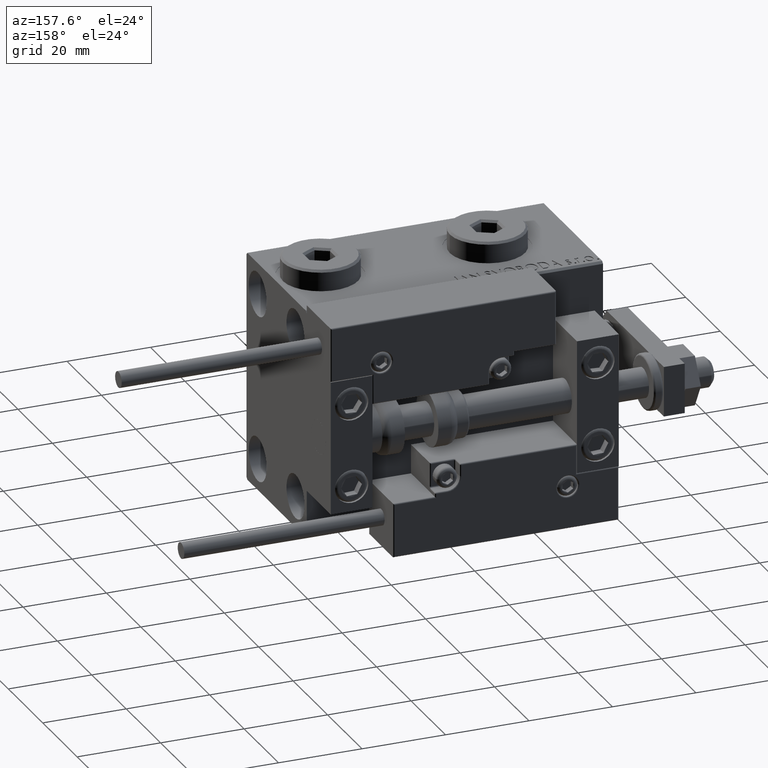
[diagram: clean part render]
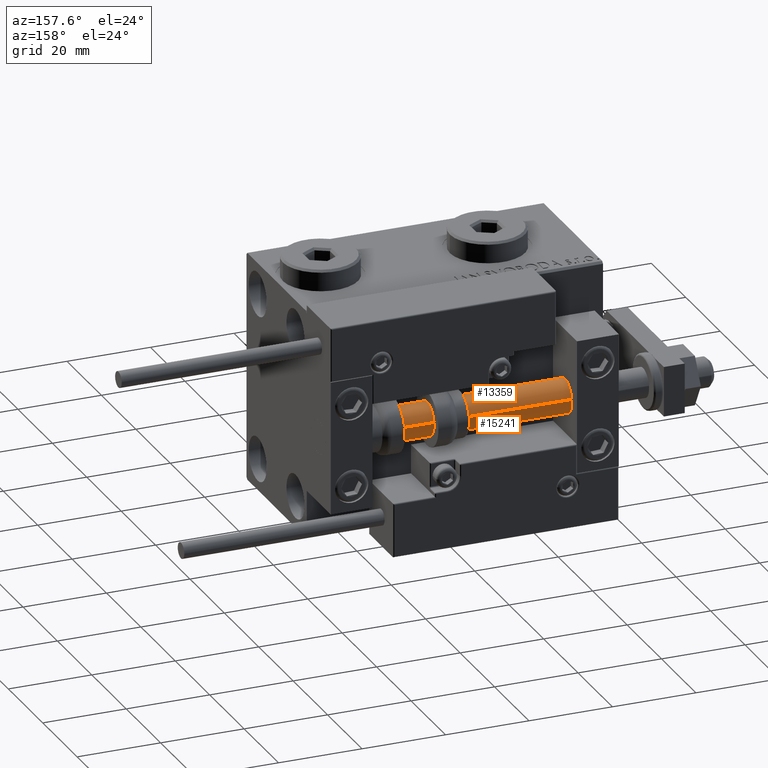
[diagram: same view with one multi-face feature highlighted, each face labeled with its STEP entity id]
A machine part, auxiliary view. The highlighted faces form ONE feature: a constant-radius fillet chain: 2 tangent blend faces with common blend radius 4 mm. The faces share edges in the B-rep.
Their STEP definitions:
[1] entity #15241 (Cylinder):
#4033 = AXIS2_PLACEMENT_3D ( 'NONE', #16280, #47301, #20429 ) ;
#5541 = ORIENTED_EDGE ( 'NONE', *, *, #43585, .F. ) ;
#6215 = DIRECTION ( 'NONE',  ( -0.000000000000000000, -0.000000000000000000, -1.000000000000000000 ) ) ;
#7732 = ORIENTED_EDGE ( 'NONE', *, *, #37714, .F. ) ;
#8553 = LINE ( 'NONE', #24436, #47929 ) ;
#9347 = FACE_OUTER_BOUND ( 'NONE', #50544, .T. ) ;
#10501 = EDGE_CURVE ( 'NONE', #33978, #41338, #13892, .T. ) ;
#12681 = CARTESIAN_POINT ( 'NONE',  ( 0.000000000000000000, 0.000000000000000000, 2.000000000000029310 ) ) ;
#13892 = LINE ( 'NONE', #29523, #29331 ) ;
#15241 = ADVANCED_FACE ( 'NONE', ( #9347 ), #37228, .T. ) ;
#16280 = CARTESIAN_POINT ( 'NONE',  ( 0.000000000000000000, 0.000000000000000000, 71.00000000000000000 ) ) ;
#19301 = CARTESIAN_POINT ( 'NONE',  ( 4.000000000000000000, 4.898587196589412829E-16, 71.00000000000000000 ) ) ;
#20429 = DIRECTION ( 'NONE',  ( 1.000000000000000000, 0.000000000000000000, 0.000000000000000000 ) ) ;
#21695 = DIRECTION ( 'NONE',  ( -0.000000000000000000, -0.000000000000000000, -1.000000000000000000 ) ) ;
#24245 = CARTESIAN_POINT ( 'NONE',  ( -4.000000000000000000, 0.000000000000000000, 71.00000000000000000 ) ) ;
#24436 = CARTESIAN_POINT ( 'NONE',  ( 4.000000000000000000, 4.898587196589412829E-16, 71.00000000000000000 ) ) ;
#25741 = CARTESIAN_POINT ( 'NONE',  ( 0.000000000000000000, 0.000000000000000000, 71.00000000000000000 ) ) ;
#28590 = ORIENTED_EDGE ( 'NONE', *, *, #10501, .T. ) ;
#29331 = VECTOR ( 'NONE', #21695, 1000.000000000000000 ) ;
#29523 = CARTESIAN_POINT ( 'NONE',  ( -4.000000000000000000, 0.000000000000000000, 71.00000000000000000 ) ) ;
#32473 = DIRECTION ( 'NONE',  ( -0.000000000000000000, -0.000000000000000000, 1.000000000000000000 ) ) ;
#32878 = CIRCLE ( 'NONE', #33692, 4.000000000000000000 ) ;
#32957 = EDGE_CURVE ( 'NONE', #41338, #33086, #32878, .T. ) ;
#33086 = VERTEX_POINT ( 'NONE', #42089 ) ;
#33692 = AXIS2_PLACEMENT_3D ( 'NONE', #12681, #32473, #40040 ) ;
#33978 = VERTEX_POINT ( 'NONE', #24245 ) ;
#36461 = CIRCLE ( 'NONE', #4033, 4.000000000000000000 ) ;
#37228 = CYLINDRICAL_SURFACE ( 'NONE', #50381, 4.000000000000000000 ) ;
#37714 = EDGE_CURVE ( 'NONE', #40004, #33086, #8553, .T. ) ;
#40004 = VERTEX_POINT ( 'NONE', #19301 ) ;
#40040 = DIRECTION ( 'NONE',  ( 1.000000000000000000, 0.000000000000000000, 0.000000000000000000 ) ) ;
#41103 = DIRECTION ( 'NONE',  ( -0.000000000000000000, -0.000000000000000000, -1.000000000000000000 ) ) ;
#41338 = VERTEX_POINT ( 'NONE', #49947 ) ;
#42089 = CARTESIAN_POINT ( 'NONE',  ( 4.000000000000000000, 4.898587196589412829E-16, 2.000000000000029310 ) ) ;
#42161 = DIRECTION ( 'NONE',  ( -1.000000000000000000, 0.000000000000000000, 0.000000000000000000 ) ) ;
#43290 = ORIENTED_EDGE ( 'NONE', *, *, #32957, .T. ) ;
#43585 = EDGE_CURVE ( 'NONE', #33978, #40004, #36461, .T. ) ;
#47301 = DIRECTION ( 'NONE',  ( 0.000000000000000000, 0.000000000000000000, 1.000000000000000000 ) ) ;
#47929 = VECTOR ( 'NONE', #41103, 1000.000000000000000 ) ;
#49947 = CARTESIAN_POINT ( 'NONE',  ( -4.000000000000000000, 0.000000000000000000, 2.000000000000029310 ) ) ;
#50381 = AXIS2_PLACEMENT_3D ( 'NONE', #25741, #6215, #42161 ) ;
#50544 = EDGE_LOOP ( 'NONE', ( #7732, #5541, #28590, #43290 ) ) ;
[2] entity #13359 (Cylinder):
#1976 = DIRECTION ( 'NONE',  ( -0.000000000000000000, -0.000000000000000000, -1.000000000000000000 ) ) ;
#2233 = CARTESIAN_POINT ( 'NONE',  ( 0.000000000000000000, 0.000000000000000000, 71.00000000000000000 ) ) ;
#8553 = LINE ( 'NONE', #24436, #47929 ) ;
#10501 = EDGE_CURVE ( 'NONE', #33978, #41338, #13892, .T. ) ;
#12456 = EDGE_CURVE ( 'NONE', #40004, #33978, #27770, .T. ) ;
#13210 = EDGE_LOOP ( 'NONE', ( #44298, #23296, #47026, #48570 ) ) ;
#13359 = ADVANCED_FACE ( 'NONE', ( #46004 ), #21766, .T. ) ;
#13892 = LINE ( 'NONE', #29523, #29331 ) ;
#17392 = EDGE_CURVE ( 'NONE', #33086, #41338, #31982, .T. ) ;
#19079 = DIRECTION ( 'NONE',  ( -0.000000000000000000, -0.000000000000000000, 1.000000000000000000 ) ) ;
#19171 = CARTESIAN_POINT ( 'NONE',  ( 0.000000000000000000, 0.000000000000000000, 71.00000000000000000 ) ) ;
#19301 = CARTESIAN_POINT ( 'NONE',  ( 4.000000000000000000, 4.898587196589412829E-16, 71.00000000000000000 ) ) ;
#21695 = DIRECTION ( 'NONE',  ( -0.000000000000000000, -0.000000000000000000, -1.000000000000000000 ) ) ;
#21766 = CYLINDRICAL_SURFACE ( 'NONE', #30309, 4.000000000000000000 ) ;
#22450 = DIRECTION ( 'NONE',  ( 1.000000000000000000, 0.000000000000000000, 0.000000000000000000 ) ) ;
#22799 = DIRECTION ( 'NONE',  ( -1.000000000000000000, 0.000000000000000000, 0.000000000000000000 ) ) ;
#23296 = ORIENTED_EDGE ( 'NONE', *, *, #37714, .T. ) ;
#23607 = AXIS2_PLACEMENT_3D ( 'NONE', #19171, #31411, #47076 ) ;
#24245 = CARTESIAN_POINT ( 'NONE',  ( -4.000000000000000000, 0.000000000000000000, 71.00000000000000000 ) ) ;
#24436 = CARTESIAN_POINT ( 'NONE',  ( 4.000000000000000000, 4.898587196589412829E-16, 71.00000000000000000 ) ) ;
#27770 = CIRCLE ( 'NONE', #23607, 4.000000000000000000 ) ;
#29331 = VECTOR ( 'NONE', #21695, 1000.000000000000000 ) ;
#29523 = CARTESIAN_POINT ( 'NONE',  ( -4.000000000000000000, 0.000000000000000000, 71.00000000000000000 ) ) ;
#30309 = AXIS2_PLACEMENT_3D ( 'NONE', #2233, #1976, #22799 ) ;
#31411 = DIRECTION ( 'NONE',  ( 0.000000000000000000, 0.000000000000000000, 1.000000000000000000 ) ) ;
#31982 = CIRCLE ( 'NONE', #44469, 4.000000000000000000 ) ;
#33086 = VERTEX_POINT ( 'NONE', #42089 ) ;
#33978 = VERTEX_POINT ( 'NONE', #24245 ) ;
#37714 = EDGE_CURVE ( 'NONE', #40004, #33086, #8553, .T. ) ;
#40004 = VERTEX_POINT ( 'NONE', #19301 ) ;
#41103 = DIRECTION ( 'NONE',  ( -0.000000000000000000, -0.000000000000000000, -1.000000000000000000 ) ) ;
#41338 = VERTEX_POINT ( 'NONE', #49947 ) ;
#42089 = CARTESIAN_POINT ( 'NONE',  ( 4.000000000000000000, 4.898587196589412829E-16, 2.000000000000029310 ) ) ;
#44298 = ORIENTED_EDGE ( 'NONE', *, *, #12456, .F. ) ;
#44469 = AXIS2_PLACEMENT_3D ( 'NONE', #46187, #19079, #22450 ) ;
#46004 = FACE_OUTER_BOUND ( 'NONE', #13210, .T. ) ;
#46187 = CARTESIAN_POINT ( 'NONE',  ( 0.000000000000000000, 0.000000000000000000, 2.000000000000029310 ) ) ;
#47026 = ORIENTED_EDGE ( 'NONE', *, *, #17392, .T. ) ;
#47076 = DIRECTION ( 'NONE',  ( 1.000000000000000000, 0.000000000000000000, 0.000000000000000000 ) ) ;
#47929 = VECTOR ( 'NONE', #41103, 1000.000000000000000 ) ;
#48570 = ORIENTED_EDGE ( 'NONE', *, *, #10501, .F. ) ;
#49947 = CARTESIAN_POINT ( 'NONE',  ( -4.000000000000000000, 0.000000000000000000, 2.000000000000029310 ) ) ;